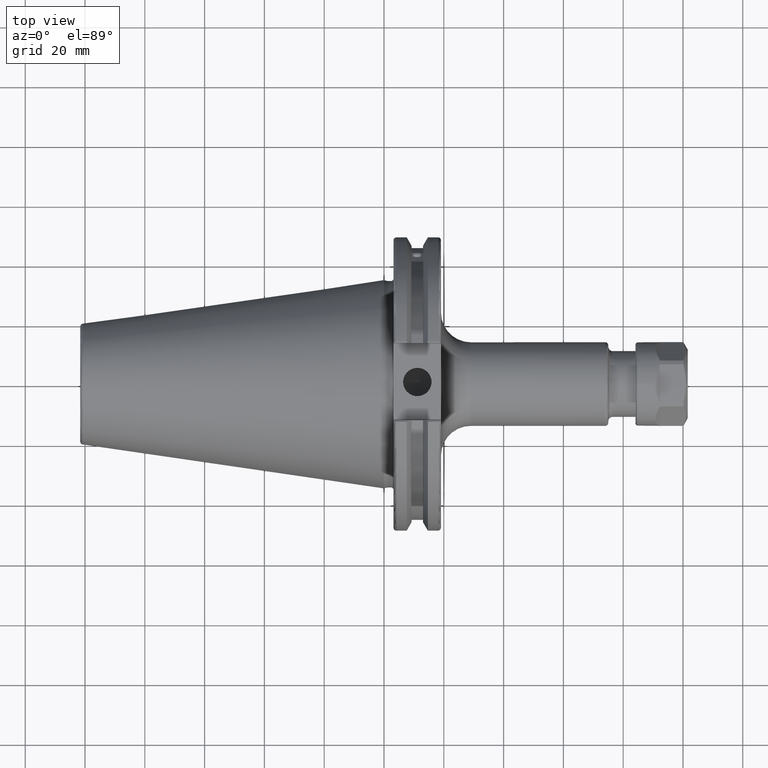
[diagram: clean part render]
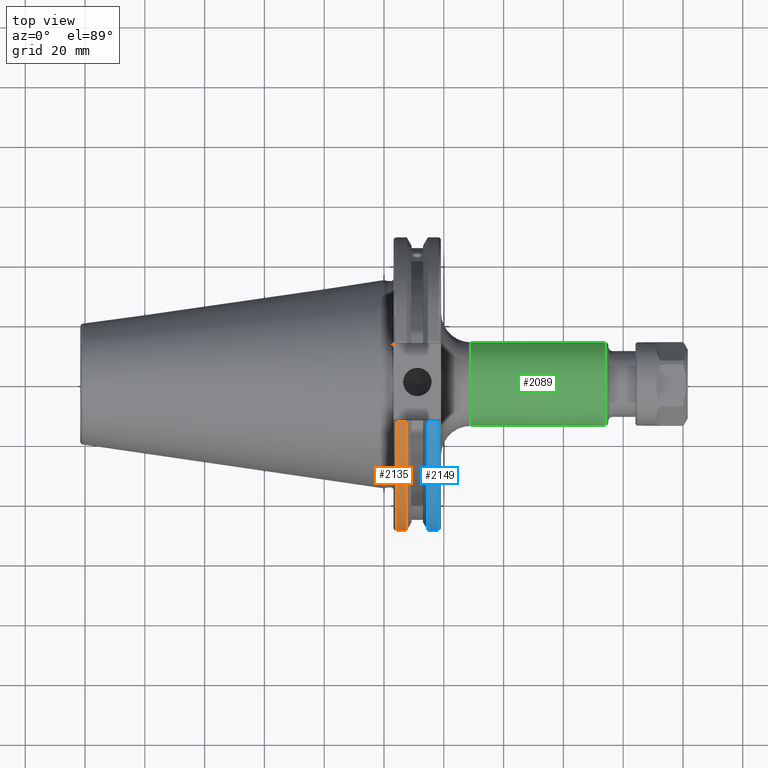
[diagram: same view with three faces highlighted in distinct colors, each labeled with its STEP entity id]
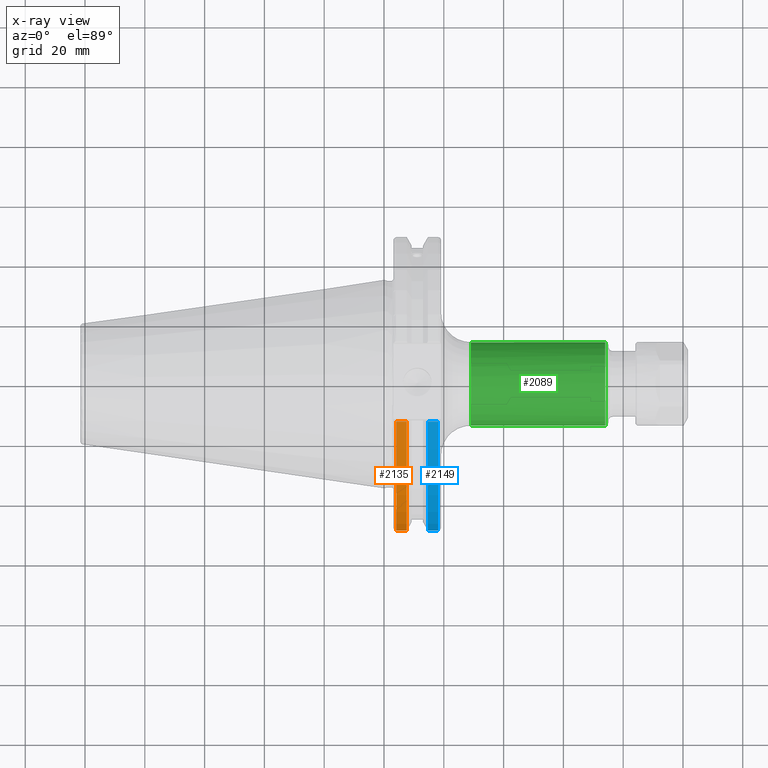
[diagram: x-ray of the same camera — body ghosted, the three highlighted faces saturated]
A machine part, top view with three faces highlighted in distinct colors.
The next image is the same camera in x-ray (body ghosted, the three faces saturated) — at least one of them is partly hidden behind the body in this view.
Their STEP definitions:

[orange] entity #2135 — the highlighted cylindrical surface (partial cylindrical patch) has radius 49.2125 mm, axis along (1, 0, 0).
#165=CYLINDRICAL_SURFACE('',#2398,49.2125);
#318=FACE_OUTER_BOUND('',#458,.T.);
#458=EDGE_LOOP('',(#1743,#1744,#1745,#1746));
#610=LINE('',#3978,#742);
#611=LINE('',#3984,#743);
#742=VECTOR('',#2842,10.);
#743=VECTOR('',#2845,10.);
#862=CIRCLE('',#2396,49.2125);
#863=CIRCLE('',#2399,49.2125);
#1047=VERTEX_POINT('',#3957);
#1048=VERTEX_POINT('',#3966);
#1049=VERTEX_POINT('',#3977);
#1050=VERTEX_POINT('',#3983);
#1304=EDGE_CURVE('',#1047,#1048,#862,.T.);
#1306=EDGE_CURVE('',#1048,#1049,#610,.T.);
#1308=EDGE_CURVE('',#1050,#1047,#611,.T.);
#1309=EDGE_CURVE('',#1049,#1050,#863,.T.);
#1743=ORIENTED_EDGE('',*,*,#1304,.F.);
#1744=ORIENTED_EDGE('',*,*,#1308,.F.);
#1745=ORIENTED_EDGE('',*,*,#1309,.F.);
#1746=ORIENTED_EDGE('',*,*,#1306,.F.);
#2135=ADVANCED_FACE('',(#318),#165,.T.);
#2396=AXIS2_PLACEMENT_3D('',#3967,#2838,#2839);
#2398=AXIS2_PLACEMENT_3D('',#3982,#2843,#2844);
#2399=AXIS2_PLACEMENT_3D('',#3985,#2846,#2847);
#2838=DIRECTION('center_axis',(-1.,0.,0.));
#2839=DIRECTION('ref_axis',(0.,-1.,1.60812264967664E-16));
#2842=DIRECTION('',(1.,0.,0.));
#2843=DIRECTION('center_axis',(1.,0.,0.));
#2844=DIRECTION('ref_axis',(0.,-1.,1.22464679914735E-16));
#2845=DIRECTION('',(-1.,0.,0.));
#2846=DIRECTION('center_axis',(1.,0.,0.));
#2847=DIRECTION('ref_axis',(0.,0.,-1.));
#3957=CARTESIAN_POINT('',(4.175,-13.4317035994433,-47.3440544806494));
#3966=CARTESIAN_POINT('',(4.175,-13.4317035994433,47.3440544806494));
#3967=CARTESIAN_POINT('Origin',(4.175,0.,0.));
#3977=CARTESIAN_POINT('',(7.60799096595127,-13.4317035994433,47.3440544806494));
#3978=CARTESIAN_POINT('',(5.39149548297564,-13.4317035994433,47.3440544806494));
#3982=CARTESIAN_POINT('Origin',(5.39149548297564,0.,0.));
#3983=CARTESIAN_POINT('',(7.60799096595127,-13.4317035994433,-47.3440544806494));
#3984=CARTESIAN_POINT('',(5.39149548297564,-13.4317035994433,-47.3440544806494));
#3985=CARTESIAN_POINT('Origin',(7.60799096595127,0.,0.));

[blue] entity #2149 — the highlighted cylindrical surface (partial cylindrical patch) has radius 49.2125 mm, axis along (1, 0, 0).
#166=CYLINDRICAL_SURFACE('',#2420,49.2125);
#332=FACE_OUTER_BOUND('',#473,.T.);
#473=EDGE_LOOP('',(#1809,#1810,#1811,#1812));
#621=LINE('',#4056,#753);
#622=LINE('',#4058,#754);
#753=VECTOR('',#2897,10.);
#754=VECTOR('',#2900,10.);
#835=CIRCLE('',#2341,49.2125);
#861=CIRCLE('',#2392,49.2125);
#973=VERTEX_POINT('',#3532);
#974=VERTEX_POINT('',#3536);
#1038=VERTEX_POINT('',#3901);
#1039=VERTEX_POINT('',#3910);
#1201=EDGE_CURVE('',#974,#973,#835,.T.);
#1288=EDGE_CURVE('',#1038,#1039,#861,.T.);
#1332=EDGE_CURVE('',#1039,#973,#621,.T.);
#1333=EDGE_CURVE('',#974,#1038,#622,.T.);
#1809=ORIENTED_EDGE('',*,*,#1288,.F.);
#1810=ORIENTED_EDGE('',*,*,#1333,.F.);
#1811=ORIENTED_EDGE('',*,*,#1201,.T.);
#1812=ORIENTED_EDGE('',*,*,#1332,.F.);
#2149=ADVANCED_FACE('',(#332),#166,.T.);
#2341=AXIS2_PLACEMENT_3D('',#3537,#2683,#2684);
#2392=AXIS2_PLACEMENT_3D('',#3911,#2821,#2822);
#2420=AXIS2_PLACEMENT_3D('',#4057,#2898,#2899);
#2683=DIRECTION('center_axis',(1.,0.,0.));
#2684=DIRECTION('ref_axis',(0.,0.,-1.));
#2821=DIRECTION('center_axis',(1.,0.,0.));
#2822=DIRECTION('ref_axis',(0.,-1.,1.60812264967664E-16));
#2897=DIRECTION('',(-1.,0.,0.));
#2898=DIRECTION('center_axis',(1.,0.,0.));
#2899=DIRECTION('ref_axis',(0.,-1.,1.22464679914735E-16));
#2900=DIRECTION('',(1.,0.,0.));
#3532=CARTESIAN_POINT('',(14.6602090340487,-13.4317035994433,-47.3440544806494));
#3536=CARTESIAN_POINT('',(14.6602090340487,-13.4317035994433,47.3440544806494));
#3537=CARTESIAN_POINT('Origin',(14.6602090340487,0.,0.));
#3901=CARTESIAN_POINT('',(18.05,-13.4317035994433,47.3440544806494));
#3910=CARTESIAN_POINT('',(18.05,-13.4317035994433,-47.3440544806494));
#3911=CARTESIAN_POINT('Origin',(18.05,0.,0.));
#4056=CARTESIAN_POINT('',(16.8551045170244,-13.4317035994433,-47.3440544806494));
#4057=CARTESIAN_POINT('Origin',(16.8551045170244,0.,0.));
#4058=CARTESIAN_POINT('',(16.8551045170244,-13.4317035994433,47.3440544806494));

[green] entity #2089 — the highlighted cylindrical surface (bore or boss wall) has radius 14 mm, axis along (1, 0, 0).
#149=CYLINDRICAL_SURFACE('',#2303,14.);
#272=FACE_OUTER_BOUND('',#399,.T.);
#399=EDGE_LOOP('',(#1473,#1474,#1475,#1476,#1477,#1478));
#541=LINE('',#3280,#673);
#673=VECTOR('',#2585,14.);
#813=CIRCLE('',#2299,14.);
#814=CIRCLE('',#2300,14.);
#816=CIRCLE('',#2304,14.);
#817=CIRCLE('',#2305,14.);
#928=VERTEX_POINT('',#3270);
#929=VERTEX_POINT('',#3272);
#931=VERTEX_POINT('',#3279);
#932=VERTEX_POINT('',#3281);
#1143=EDGE_CURVE('',#928,#929,#813,.T.);
#1144=EDGE_CURVE('',#929,#928,#814,.T.);
#1146=EDGE_CURVE('',#929,#931,#541,.T.);
#1147=EDGE_CURVE('',#932,#931,#816,.T.);
#1148=EDGE_CURVE('',#931,#932,#817,.T.);
#1473=ORIENTED_EDGE('',*,*,#1144,.F.);
#1474=ORIENTED_EDGE('',*,*,#1146,.T.);
#1475=ORIENTED_EDGE('',*,*,#1147,.F.);
#1476=ORIENTED_EDGE('',*,*,#1148,.F.);
#1477=ORIENTED_EDGE('',*,*,#1146,.F.);
#1478=ORIENTED_EDGE('',*,*,#1143,.F.);
#2089=ADVANCED_FACE('',(#272),#149,.T.);
#2299=AXIS2_PLACEMENT_3D('',#3273,#2575,#2576);
#2300=AXIS2_PLACEMENT_3D('',#3274,#2577,#2578);
#2303=AXIS2_PLACEMENT_3D('',#3278,#2583,#2584);
#2304=AXIS2_PLACEMENT_3D('',#3282,#2586,#2587);
#2305=AXIS2_PLACEMENT_3D('',#3283,#2588,#2589);
#2575=DIRECTION('center_axis',(1.,0.,0.));
#2576=DIRECTION('ref_axis',(0.,-1.,1.83697019872103E-16));
#2577=DIRECTION('center_axis',(1.,0.,0.));
#2578=DIRECTION('ref_axis',(0.,-1.,1.83697019872103E-16));
#2583=DIRECTION('center_axis',(1.,0.,0.));
#2584=DIRECTION('ref_axis',(0.,1.,0.));
#2585=DIRECTION('',(-1.,0.,0.));
#2586=DIRECTION('center_axis',(-1.,0.,0.));
#2587=DIRECTION('ref_axis',(0.,-1.,-1.22464679914735E-16));
#2588=DIRECTION('center_axis',(-1.,0.,0.));
#2589=DIRECTION('ref_axis',(0.,-1.,-1.22464679914735E-16));
#3270=CARTESIAN_POINT('',(74.,-1.71450551880629E-15,14.));
#3272=CARTESIAN_POINT('',(74.,-14.,-1.71450551880629E-15));
#3273=CARTESIAN_POINT('Origin',(74.,0.,0.));
#3274=CARTESIAN_POINT('Origin',(74.,0.,0.));
#3278=CARTESIAN_POINT('Origin',(47.025,0.,0.));
#3279=CARTESIAN_POINT('',(29.05,-14.,-1.71450551880629E-15));
#3280=CARTESIAN_POINT('',(47.025,-14.,-1.71450551880629E-15));
#3281=CARTESIAN_POINT('',(29.05,-1.71450551880629E-15,-14.));
#3282=CARTESIAN_POINT('Origin',(29.05,0.,0.));
#3283=CARTESIAN_POINT('Origin',(29.05,0.,0.));